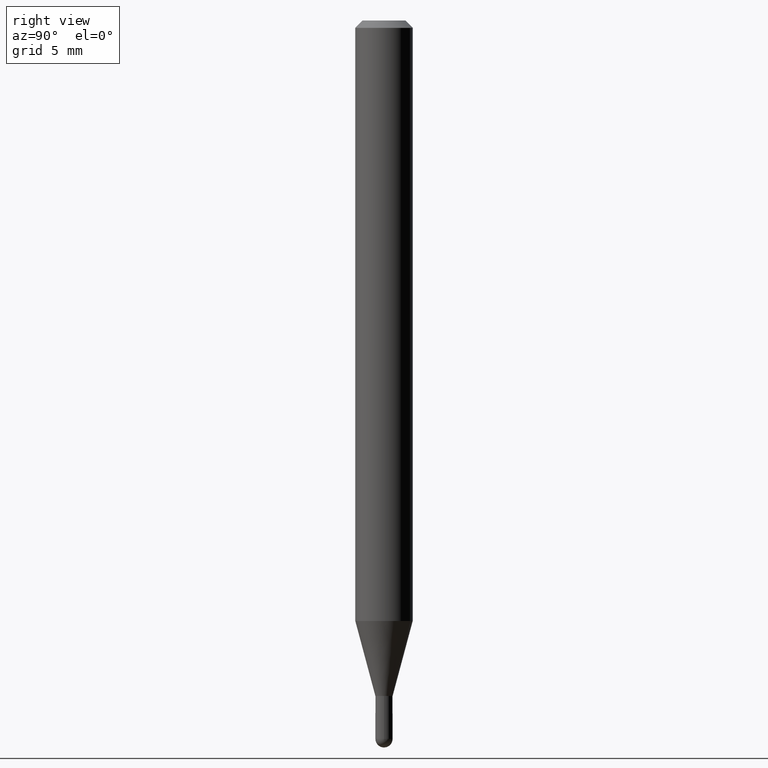
[diagram: clean part render]
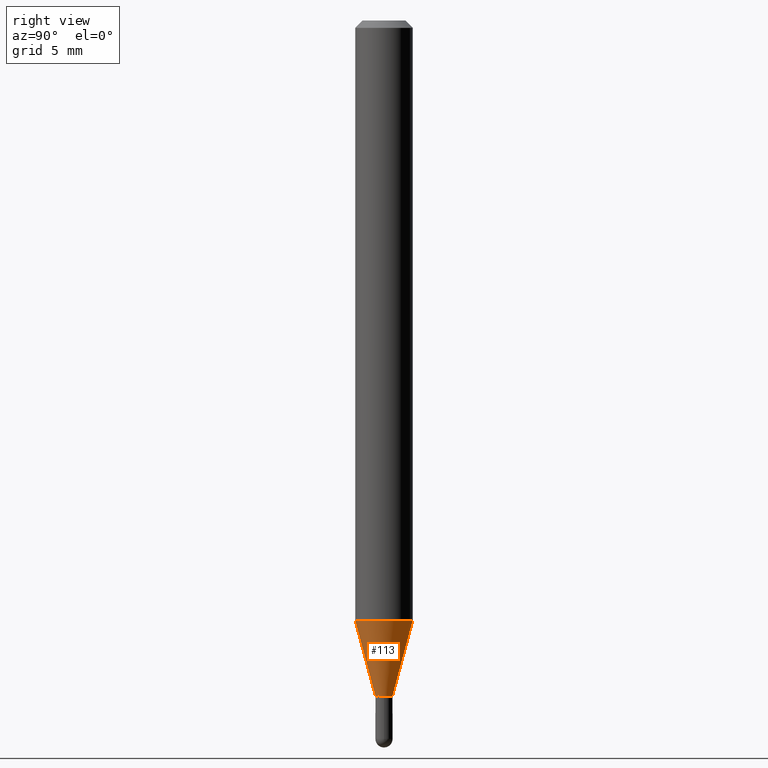
[diagram: same view with one face highlighted and labeled with its STEP entity id]
A machine part, right view. The second image highlights one B-rep face of the part: STEP entity #113.
In plain terms, the highlighted conical surface has half-angle 15 deg.
Its self-contained STEP definition (entity closure, byte-faithful):
#3 = VECTOR ( 'NONE', #470, 39.37007874015748854 ) ;
#36 = EDGE_CURVE ( 'NONE', #482, #59, #238, .T. ) ;
#38 = DIRECTION ( 'NONE',  ( 1.839019923739649619E-15, 0.2588190451025318972, 0.9659258262890650926 ) ) ;
#40 = LINE ( 'NONE', #510, #3 ) ;
#59 = VERTEX_POINT ( 'NONE', #430 ) ;
#63 = CARTESIAN_POINT ( 'NONE',  ( 3.399408390091603285E-29, -4.853562337134410202E-15, -1.390100000000000113 ) ) ;
#73 = LINE ( 'NONE', #495, #80 ) ;
#80 = VECTOR ( 'NONE', #38, 39.37007874015748854 ) ;
#84 = ORIENTED_EDGE ( 'NONE', *, *, #132, .T. ) ;
#89 = CARTESIAN_POINT ( 'NONE',  ( 2.726707748479693555E-16, 0.01769999999999479628, -1.390100000000000113 ) ) ;
#106 = CARTESIAN_POINT ( 'NONE',  ( -1.235984393950104545E-16, -0.01770000000000450380, -1.390100000000000113 ) ) ;
#113 = ADVANCED_FACE ( 'NONE', ( #228 ), #443, .T. ) ;
#132 = EDGE_CURVE ( 'NONE', #414, #321, #170, .T. ) ;
#169 = ORIENTED_EDGE ( 'NONE', *, *, #36, .F. ) ;
#170 = CIRCLE ( 'NONE', #464, 0.01769999999999965004 ) ;
#204 = EDGE_CURVE ( 'NONE', #414, #482, #40, .T. ) ;
#228 = FACE_OUTER_BOUND ( 'NONE', #284, .T. ) ;
#238 = CIRCLE ( 'NONE', #462, 0.05904999999999999832 ) ;
#251 = ORIENTED_EDGE ( 'NONE', *, *, #398, .T. ) ;
#273 = DIRECTION ( 'NONE',  ( -2.445441615776996841E-29, 3.491520277055183358E-15, 1.000000000000000000 ) ) ;
#284 = EDGE_LOOP ( 'NONE', ( #84, #251, #169, #366 ) ) ;
#314 = DIRECTION ( 'NONE',  ( -2.445441615776996841E-29, 3.491520277055183358E-15, 1.000000000000000000 ) ) ;
#321 = VERTEX_POINT ( 'NONE', #89 ) ;
#334 = AXIS2_PLACEMENT_3D ( 'NONE', #63, #427, #384 ) ;
#345 = CARTESIAN_POINT ( 'NONE',  ( -4.123439461173439574E-16, -0.05905000000000432819, -1.235779699107030449 ) ) ;
#353 = DIRECTION ( 'NONE',  ( -6.982962677686265922E-15, -1.000000000000000000, 4.626330217890369336E-15 ) ) ;
#366 = ORIENTED_EDGE ( 'NONE', *, *, #204, .F. ) ;
#381 = CARTESIAN_POINT ( 'NONE',  ( 3.022027104128707959E-29, -4.314749877405350668E-15, -1.235779699107030671 ) ) ;
#384 = DIRECTION ( 'NONE',  ( -6.982962677686265133E-15, -1.000000000000000000, 0.000000000000000000 ) ) ;
#387 = DIRECTION ( 'NONE',  ( -6.982962677686265133E-15, -1.000000000000000000, 0.000000000000000000 ) ) ;
#398 = EDGE_CURVE ( 'NONE', #321, #59, #73, .T. ) ;
#414 = VERTEX_POINT ( 'NONE', #106 ) ;
#427 = DIRECTION ( 'NONE',  ( -2.445441615776996841E-29, 3.491520277055183358E-15, 1.000000000000000000 ) ) ;
#430 = CARTESIAN_POINT ( 'NONE',  ( 4.195754854663691246E-16, 0.05904999999999566845, -1.235779699107030893 ) ) ;
#443 = CONICAL_SURFACE ( 'NONE', #334, 0.01769999999999965004, 0.2617993877991575125 ) ;
#460 = CARTESIAN_POINT ( 'NONE',  ( 3.399408390091603285E-29, -4.853562337134410202E-15, -1.390100000000000113 ) ) ;
#462 = AXIS2_PLACEMENT_3D ( 'NONE', #381, #273, #353 ) ;
#464 = AXIS2_PLACEMENT_3D ( 'NONE', #460, #314, #387 ) ;
#470 = DIRECTION ( 'NONE',  ( -1.807323732225379049E-15, -0.2588190451025252359, 0.9659258262890670910 ) ) ;
#482 = VERTEX_POINT ( 'NONE', #345 ) ;
#495 = CARTESIAN_POINT ( 'NONE',  ( 1.257660642295692413E-16, 0.01769999999999479628, -1.390100000000000113 ) ) ;
#510 = CARTESIAN_POINT ( 'NONE',  ( -1.235984393950104545E-16, -0.01770000000000450380, -1.390100000000000113 ) ) ;